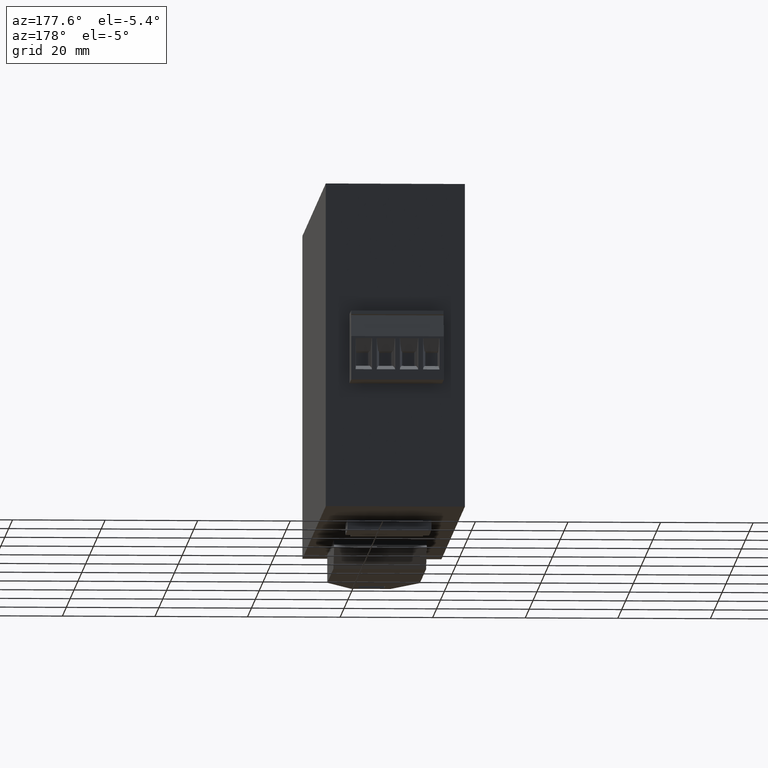
[diagram: clean part render]
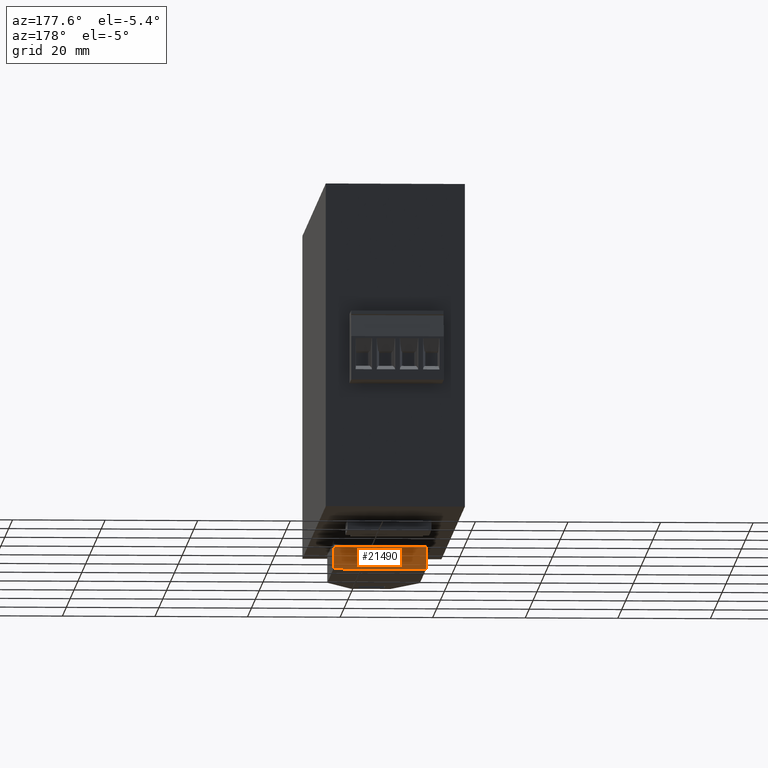
[diagram: same view with one face highlighted and labeled with its STEP entity id]
A machine part, auxiliary view. The second image highlights one B-rep face of the part: STEP entity #21490.
In plain terms, the highlighted planar face has unit normal (0, -0.7578, 0.6525).
Its self-contained STEP definition (entity closure, byte-faithful):
#13810=CARTESIAN_POINT('',(-22.0123015873009,-18.2921031746032,-71.39));
#13820=VERTEX_POINT('',#13810);
#13850=CARTESIAN_POINT('',(-22.0123015873009,69.0463721617195,
30.0499999999998));
#13860=DIRECTION('',(0.,-0.652468929913657,-0.757815475889301));
#13870=VECTOR('',#13860,1.);
#13880=LINE('',#13850,#13870);
#13890=CARTESIAN_POINT('',(-22.0123015873009,-22.1321031746031,-75.85));
#13900=VERTEX_POINT('',#13890);
#13910=EDGE_CURVE('',#13820,#13900,#13880,.T.);
#19230=CARTESIAN_POINT('',(-42.0323015873009,-18.2921031746032,-71.39));
#19240=VERTEX_POINT('',#19230);
#19270=CARTESIAN_POINT('',(0.,-18.2921031746032,-71.39));
#19280=DIRECTION('',(1.,-3.46944695195361E-18,-1.12154228606133E-16));
#19290=VECTOR('',#19280,1.);
#19300=LINE('',#19270,#19290);
#19310=EDGE_CURVE('',#19240,#13820,#19300,.T.);
#19740=CARTESIAN_POINT('',(-42.0323015873009,-22.1321031746031,-75.85));
#19750=VERTEX_POINT('',#19740);
#19780=CARTESIAN_POINT('',(-42.0323015873009,69.0463721617195,
30.0499999999998));
#19790=DIRECTION('',(8.32667268468867E-17,0.652468929913657,
0.757815475889301));
#19800=VECTOR('',#19790,1.);
#19810=LINE('',#19780,#19800);
#19820=EDGE_CURVE('',#19750,#19240,#19810,.T.);
#20880=CARTESIAN_POINT('',(0.,-22.1321031746031,-75.85));
#20890=DIRECTION('',(1.,9.3093835076645E-17,0.));
#20900=VECTOR('',#20890,1.);
#20910=LINE('',#20880,#20900);
#20920=EDGE_CURVE('',#19750,#13900,#20910,.T.);
#21380=CARTESIAN_POINT('',(-22.0123015873009,-18.2921031746032,-71.39));
#21390=DIRECTION('',(7.05479489309678E-17,-0.757815475889301,
0.652468929913657));
#21400=DIRECTION('',(-8.72559164642874E-17,-0.652468929913657,
-0.757815475889301));
#21410=AXIS2_PLACEMENT_3D('',#21380,#21390,#21400);
#21420=PLANE('',#21410);
#21430=ORIENTED_EDGE('',*,*,#19310,.T.);
#21440=ORIENTED_EDGE('',*,*,#19820,.T.);
#21450=ORIENTED_EDGE('',*,*,#20920,.F.);
#21460=ORIENTED_EDGE('',*,*,#13910,.T.);
#21470=EDGE_LOOP('',(#21460,#21450,#21440,#21430));
#21480=FACE_OUTER_BOUND('',#21470,.T.);
#21490=ADVANCED_FACE('',(#21480),#21420,.F.);